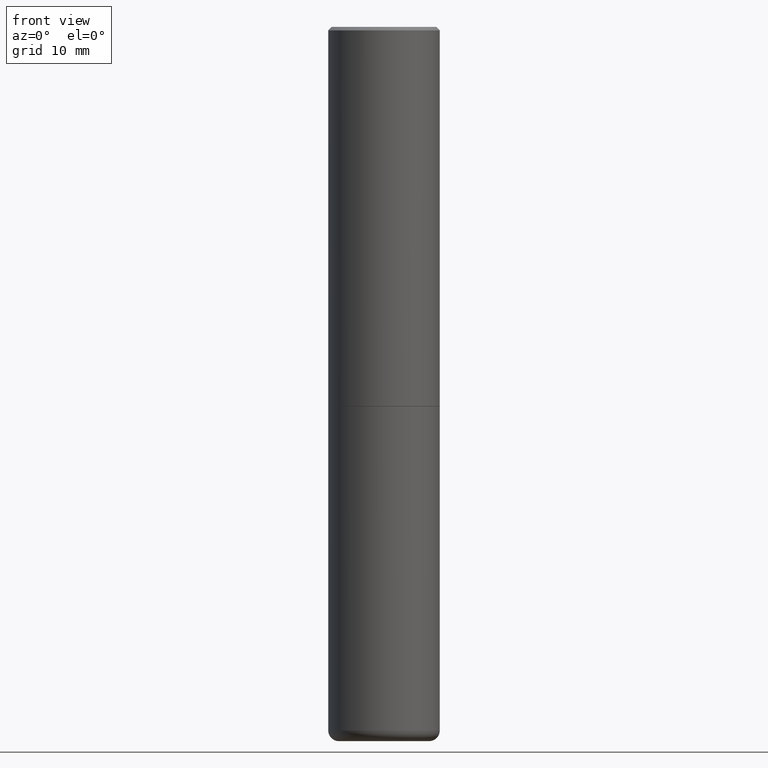
[diagram: clean part render]
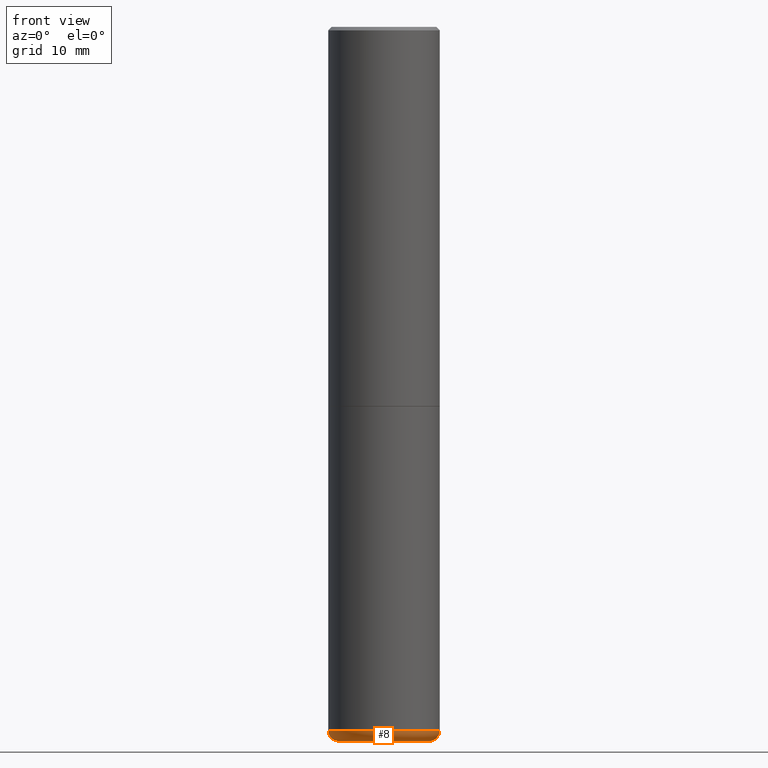
[diagram: same view with one face highlighted and labeled with its STEP entity id]
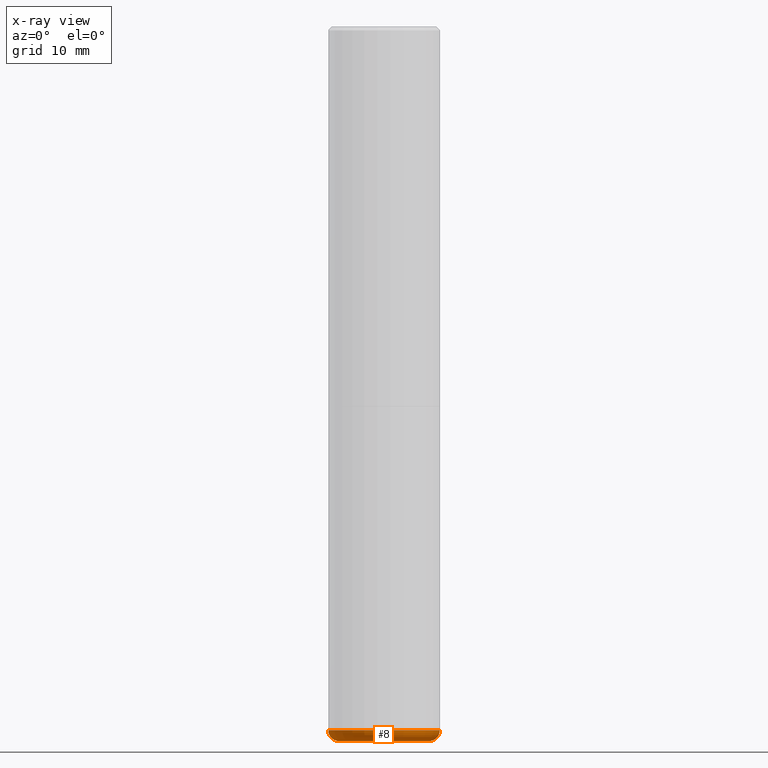
[diagram: x-ray of the same camera — body ghosted, the highlighted face saturated]
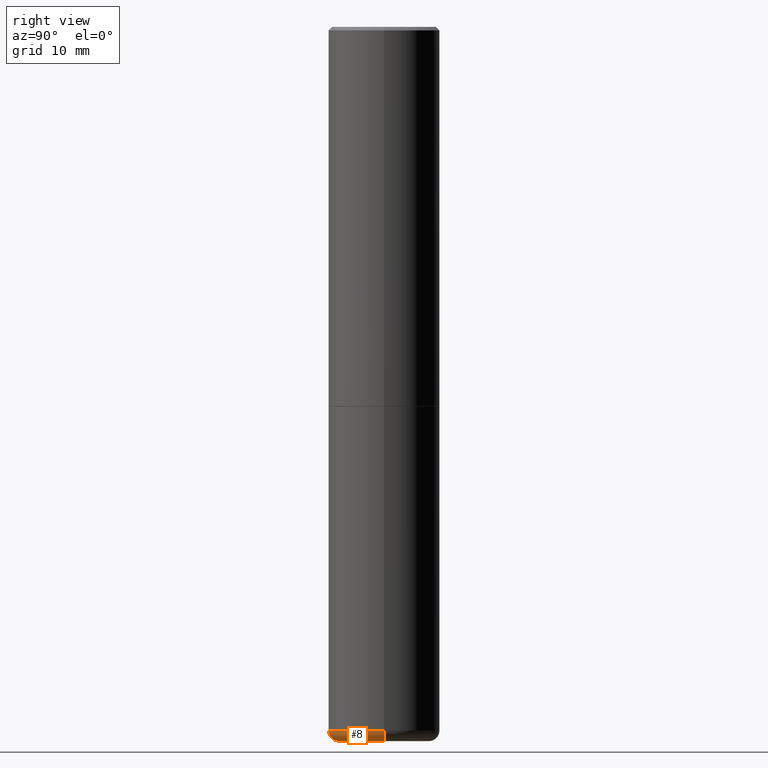
[diagram: same view with one face highlighted and labeled with its STEP entity id]
A machine part, front view. The second image highlights one B-rep face of the part: STEP entity #8.
The next image is the same camera in x-ray: the body ghosted, the highlighted face saturated — about 0% of this face is hidden behind the body in this view.
A second angle (right view) of the same face is appended — the face is thin or edge-on in the first view.
In plain terms, the highlighted toroidal blend (fillet) surface has major radius 6.4135 mm and minor (blend) radius 1.524 mm.
Its self-contained STEP definition (entity closure, byte-faithful):
#5 = CIRCLE ( 'NONE', #353, 0.06000000000000021289 ) ;
#8 = ADVANCED_FACE ( 'NONE', ( #320 ), #314, .T. ) ;
#22 = CARTESIAN_POINT ( 'NONE',  ( 9.635147096369438236E-29, -1.375643647504199401E-14, -3.939999999999999947 ) ) ;
#32 = CIRCLE ( 'NONE', #267, 0.2525000000000000022 ) ;
#51 = DIRECTION ( 'NONE',  ( 1.000000000000000000, -6.982962677686275388E-15, 0.000000000000000000 ) ) ;
#56 = CARTESIAN_POINT ( 'NONE',  ( 0.2525000000000000022, -1.572912343148836720E-14, -4.000000000000000888 ) ) ;
#69 = CIRCLE ( 'NONE', #376, 0.06000000000000021289 ) ;
#81 = CARTESIAN_POINT ( 'NONE',  ( -0.2525000000000000022, -1.196231606724773985E-14, -3.939999999999999947 ) ) ;
#89 = ORIENTED_EDGE ( 'NONE', *, *, #175, .F. ) ;
#90 = DIRECTION ( 'NONE',  ( 1.000000000000000000, -6.982962677686264344E-15, 4.883557194083112340E-29 ) ) ;
#101 = CARTESIAN_POINT ( 'NONE',  ( 9.781875224740547508E-29, -1.396592535537258391E-14, -4.000000000000000888 ) ) ;
#106 = DIRECTION ( 'NONE',  ( 1.000000000000000000, -6.982962677686269077E-15, 0.000000000000000000 ) ) ;
#122 = CARTESIAN_POINT ( 'NONE',  ( 0.2525000000000000022, -1.551963455115777730E-14, -3.939999999999999947 ) ) ;
#128 = EDGE_CURVE ( 'NONE', #284, #227, #69, .T. ) ;
#132 = CARTESIAN_POINT ( 'NONE',  ( 9.635147096369438236E-29, -1.375643647504199401E-14, -3.939999999999999947 ) ) ;
#134 = DIRECTION ( 'NONE',  ( -2.445468806185136597E-29, 3.491481338843145583E-15, 1.000000000000000000 ) ) ;
#136 = AXIS2_PLACEMENT_3D ( 'NONE', #132, #134, #106 ) ;
#137 = ORIENTED_EDGE ( 'NONE', *, *, #128, .T. ) ;
#165 = CARTESIAN_POINT ( 'NONE',  ( -0.3125000000000001665, -1.153599042579167936E-14, -3.939999999999999947 ) ) ;
#175 = EDGE_CURVE ( 'NONE', #261, #382, #5, .T. ) ;
#185 = ORIENTED_EDGE ( 'NONE', *, *, #377, .F. ) ;
#227 = VERTEX_POINT ( 'NONE', #381 ) ;
#261 = VERTEX_POINT ( 'NONE', #305 ) ;
#267 = AXIS2_PLACEMENT_3D ( 'NONE', #101, #343, #271 ) ;
#271 = DIRECTION ( 'NONE',  ( 1.000000000000000000, -6.982962677686269866E-15, 0.000000000000000000 ) ) ;
#284 = VERTEX_POINT ( 'NONE', #56 ) ;
#289 = AXIS2_PLACEMENT_3D ( 'NONE', #22, #408, #90 ) ;
#305 = CARTESIAN_POINT ( 'NONE',  ( -0.2525000000000000022, -1.185389768668500455E-14, -4.000000000000000888 ) ) ;
#306 = EDGE_LOOP ( 'NONE', ( #89, #357, #137, #185 ) ) ;
#307 = DIRECTION ( 'NONE',  ( 7.105427357601001859E-15, 1.000000000000000000, -3.491481338843145583E-15 ) ) ;
#312 = DIRECTION ( 'NONE',  ( -1.000000000000000000, 7.105427357600997914E-15, 0.000000000000000000 ) ) ;
#314 = TOROIDAL_SURFACE ( 'NONE', #289, 0.2525000000000000022, 0.06000000000000023370 ) ;
#320 = FACE_OUTER_BOUND ( 'NONE', #306, .T. ) ;
#343 = DIRECTION ( 'NONE',  ( -2.445468806185136597E-29, 3.491481338843145583E-15, 1.000000000000000000 ) ) ;
#353 = AXIS2_PLACEMENT_3D ( 'NONE', #81, #307, #312 ) ;
#357 = ORIENTED_EDGE ( 'NONE', *, *, #396, .T. ) ;
#376 = AXIS2_PLACEMENT_3D ( 'NONE', #122, #378, #51 ) ;
#377 = EDGE_CURVE ( 'NONE', #382, #227, #389, .T. ) ;
#378 = DIRECTION ( 'NONE',  ( -6.982962677686266711E-15, -1.000000000000000000, 3.491481338843145583E-15 ) ) ;
#381 = CARTESIAN_POINT ( 'NONE',  ( 0.3125000000000001665, -1.593861231181895394E-14, -3.939999999999999947 ) ) ;
#382 = VERTEX_POINT ( 'NONE', #165 ) ;
#389 = CIRCLE ( 'NONE', #136, 0.3125000000000000000 ) ;
#396 = EDGE_CURVE ( 'NONE', #261, #284, #32, .T. ) ;
#408 = DIRECTION ( 'NONE',  ( -2.445468806185136597E-29, 3.491481338843145583E-15, 1.000000000000000000 ) ) ;